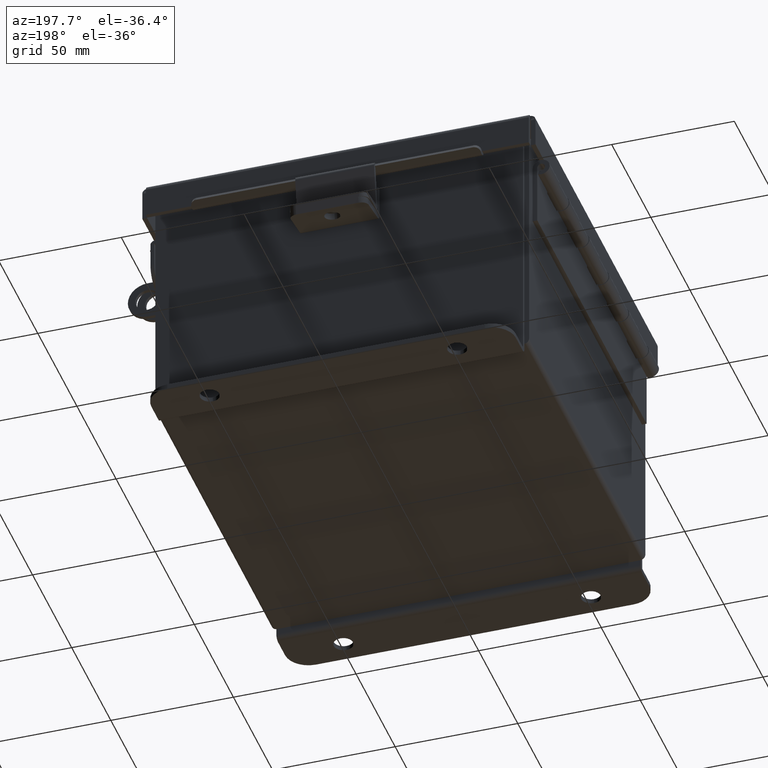
[diagram: clean part render]
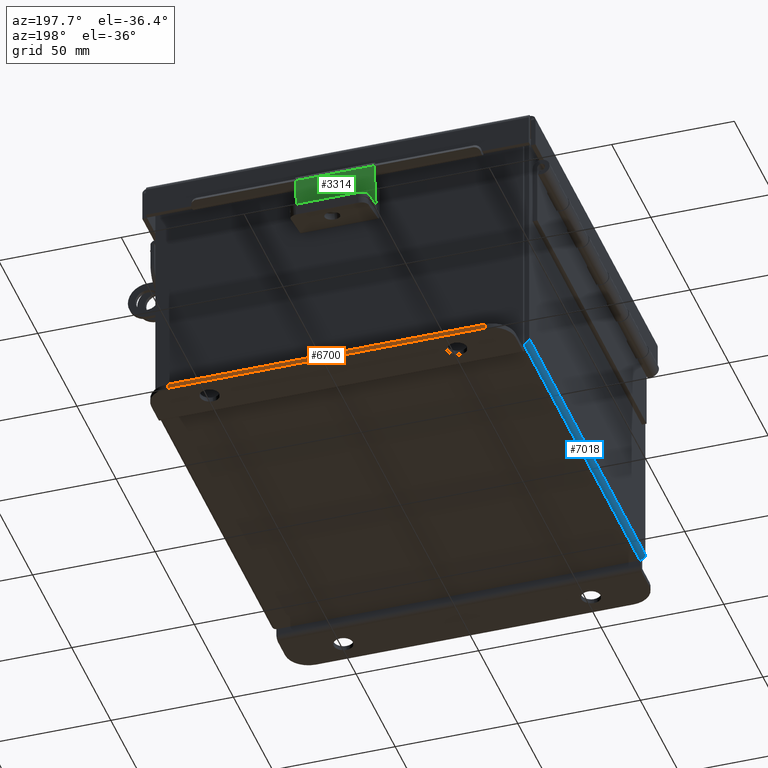
[diagram: same view with three faces highlighted in distinct colors, each labeled with its STEP entity id]
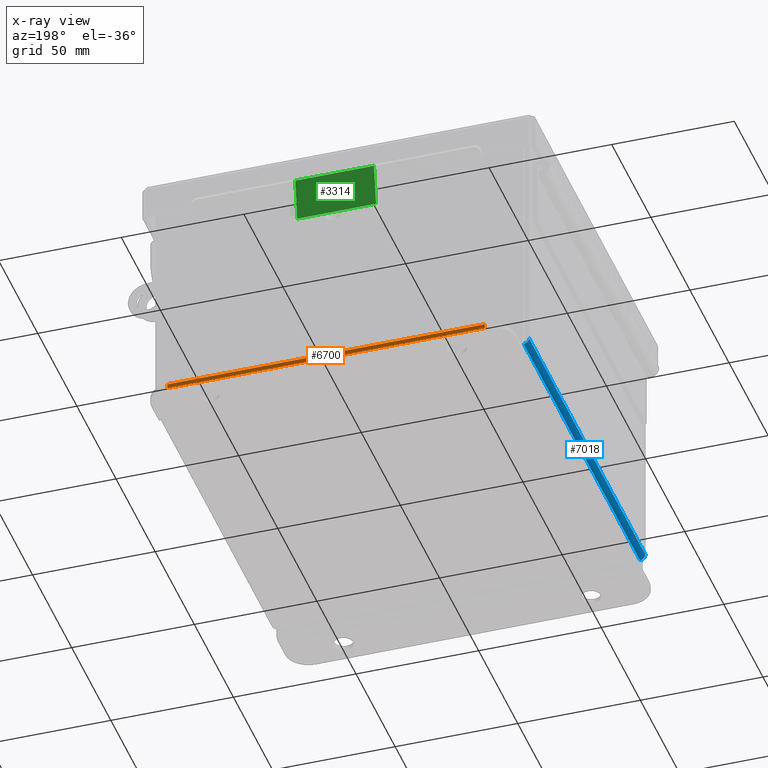
[diagram: x-ray of the same camera — body ghosted, the three highlighted faces saturated]
A machine part, auxiliary view with three faces highlighted in distinct colors.
The next image is the same camera in x-ray (body ghosted, the three faces saturated) — at least one of them is partly hidden behind the body in this view.
Their STEP definitions:

[orange] entity #6700 — the highlighted planar face has unit normal (0, -1, 0).
#57 = DIRECTION ( 'NONE',  ( 0.0000000000000000000, -1.000000000000000000, 3.491481338843133700E-015 ) ) ;
#151 = CARTESIAN_POINT ( 'NONE',  ( 2.550299999999999100, 0.7378000000000000100, -2.112300000000001600 ) ) ;
#186 = VERTEX_POINT ( 'NONE', #13097 ) ;
#301 = EDGE_CURVE ( 'NONE', #1570, #2209, #4873, .T. ) ;
#490 = VERTEX_POINT ( 'NONE', #9980 ) ;
#1355 = EDGE_CURVE ( 'NONE', #186, #490, #4846, .T. ) ;
#1570 = VERTEX_POINT ( 'NONE', #10297 ) ;
#1906 = LINE ( 'NONE', #7580, #10685 ) ;
#1921 = VECTOR ( 'NONE', #11776, 39.37007874015748100 ) ;
#2209 = VERTEX_POINT ( 'NONE', #151 ) ;
#2738 = ORIENTED_EDGE ( 'NONE', *, *, #8226, .T. ) ;
#3466 = ORIENTED_EDGE ( 'NONE', *, *, #1355, .F. ) ;
#4384 = PLANE ( 'NONE',  #14009 ) ;
#4846 = LINE ( 'NONE', #7072, #1921 ) ;
#4870 = FACE_OUTER_BOUND ( 'NONE', #10190, .T. ) ;
#4873 = LINE ( 'NONE', #5789, #7798 ) ;
#5789 = CARTESIAN_POINT ( 'NONE',  ( 2.925299999999999100, 0.7378000000000000100, -2.112300000000001600 ) ) ;
#6613 = CARTESIAN_POINT ( 'NONE',  ( 2.925299999999999100, 0.7378000000000000100, -2.187000000000001600 ) ) ;
#6700 = ADVANCED_FACE ( 'NONE', ( #4870 ), #4384, .F. ) ;
#6899 = DIRECTION ( 'NONE',  ( 1.000000000000000000, -0.0000000000000000000, -0.0000000000000000000 ) ) ;
#7072 = CARTESIAN_POINT ( 'NONE',  ( 0.0000000000000000000, 0.7378000000000000100, -2.187000000000001600 ) ) ;
#7336 = CARTESIAN_POINT ( 'NONE',  ( 2.550299999999999100, 0.7378000000000000100, -2.187000000000001600 ) ) ;
#7580 = CARTESIAN_POINT ( 'NONE',  ( -2.550300000000000900, 0.7378000000000000100, -2.187000000000001600 ) ) ;
#7714 = DIRECTION ( 'NONE',  ( 0.0000000000000000000, -3.491481338843133700E-015, -1.000000000000000000 ) ) ;
#7798 = VECTOR ( 'NONE', #6899, 39.37007874015748100 ) ;
#8226 = EDGE_CURVE ( 'NONE', #186, #1570, #1906, .T. ) ;
#8455 = DIRECTION ( 'NONE',  ( -0.0000000000000000000, -3.491481338843133700E-015, -1.000000000000000000 ) ) ;
#9898 = EDGE_CURVE ( 'NONE', #2209, #490, #10491, .T. ) ;
#9925 = ORIENTED_EDGE ( 'NONE', *, *, #301, .T. ) ;
#9980 = CARTESIAN_POINT ( 'NONE',  ( 2.550299999999999100, 0.7378000000000000100, -2.187000000000001600 ) ) ;
#10157 = VECTOR ( 'NONE', #8455, 39.37007874015748100 ) ;
#10190 = EDGE_LOOP ( 'NONE', ( #9925, #10850, #3466, #2738 ) ) ;
#10297 = CARTESIAN_POINT ( 'NONE',  ( -2.550300000000000900, 0.7378000000000000100, -2.112300000000001600 ) ) ;
#10491 = LINE ( 'NONE', #7336, #10157 ) ;
#10685 = VECTOR ( 'NONE', #14162, 39.37007874015748100 ) ;
#10850 = ORIENTED_EDGE ( 'NONE', *, *, #9898, .T. ) ;
#11776 = DIRECTION ( 'NONE',  ( 1.000000000000000000, 0.0000000000000000000, -0.0000000000000000000 ) ) ;
#13097 = CARTESIAN_POINT ( 'NONE',  ( -2.550300000000000900, 0.7378000000000000100, -2.187000000000001600 ) ) ;
#14009 = AXIS2_PLACEMENT_3D ( 'NONE', #6613, #57, #7714 ) ;
#14162 = DIRECTION ( 'NONE',  ( -0.0000000000000000000, 3.491481338843133700E-015, 1.000000000000000000 ) ) ;

[blue] entity #7018 — the highlighted cylindrical surface (edge-blend (fillet) strip) has radius 2.2276 mm, axis along (0, -1, 0).
#47 = CIRCLE ( 'NONE', #1556, 0.08770000000000009700 ) ;
#755 = DIRECTION ( 'NONE',  ( -0.0000000000000000000, 1.000000000000000000, -8.208677865577646300E-017 ) ) ;
#987 = CARTESIAN_POINT ( 'NONE',  ( -2.999999999999999100, 2.925300000000000500, 0.01299999999999987600 ) ) ;
#1448 = ORIENTED_EDGE ( 'NONE', *, *, #8668, .F. ) ;
#1547 = CARTESIAN_POINT ( 'NONE',  ( -2.912299999999998800, -2.925299999999999100, 0.01300000000000066200 ) ) ;
#1556 = AXIS2_PLACEMENT_3D ( 'NONE', #10993, #4388, #12099 ) ;
#1725 = LINE ( 'NONE', #2967, #7227 ) ;
#1950 = CARTESIAN_POINT ( 'NONE',  ( -2.912299999999998800, -2.925299999999999100, -0.07469999999999943400 ) ) ;
#2189 = ORIENTED_EDGE ( 'NONE', *, *, #10518, .F. ) ;
#2396 = EDGE_CURVE ( 'NONE', #3569, #6614, #5355, .T. ) ;
#2650 = DIRECTION ( 'NONE',  ( 0.0000000000000000000, 0.0000000000000000000, -1.000000000000000000 ) ) ;
#2967 = CARTESIAN_POINT ( 'NONE',  ( -2.912299999999998800, -2.925299999999999600, -0.07469999999999943400 ) ) ;
#3569 = VERTEX_POINT ( 'NONE', #4741 ) ;
#3721 = DIRECTION ( 'NONE',  ( 0.0000000000000000000, -1.000000000000000000, 8.208677865577646300E-017 ) ) ;
#3799 = VERTEX_POINT ( 'NONE', #11207 ) ;
#4333 = FACE_OUTER_BOUND ( 'NONE', #7242, .T. ) ;
#4388 = DIRECTION ( 'NONE',  ( -0.0000000000000000000, 1.000000000000000000, -8.208677865577646300E-017 ) ) ;
#4559 = ORIENTED_EDGE ( 'NONE', *, *, #2396, .T. ) ;
#4741 = CARTESIAN_POINT ( 'NONE',  ( -2.999999999999999100, -2.925299999999999100, 0.01300000000000039000 ) ) ;
#4785 = ORIENTED_EDGE ( 'NONE', *, *, #10244, .F. ) ;
#4800 = CIRCLE ( 'NONE', #13867, 0.08770000000000009700 ) ;
#4834 = CARTESIAN_POINT ( 'NONE',  ( -2.912299999999998800, -2.925299999999999600, 0.01300000000000066200 ) ) ;
#5355 = LINE ( 'NONE', #10918, #5715 ) ;
#5715 = VECTOR ( 'NONE', #13133, 39.37007874015748100 ) ;
#6614 = VERTEX_POINT ( 'NONE', #987 ) ;
#6930 = CYLINDRICAL_SURFACE ( 'NONE', #13740, 0.08770000000000026400 ) ;
#7018 = ADVANCED_FACE ( 'NONE', ( #4333 ), #6930, .T. ) ;
#7227 = VECTOR ( 'NONE', #755, 39.37007874015748100 ) ;
#7242 = EDGE_LOOP ( 'NONE', ( #1448, #4785, #4559, #2189 ) ) ;
#8668 = EDGE_CURVE ( 'NONE', #11018, #3799, #1725, .T. ) ;
#9232 = DIRECTION ( 'NONE',  ( 0.0000000000000000000, -1.000000000000000000, 8.208677865577646300E-017 ) ) ;
#10244 = EDGE_CURVE ( 'NONE', #3569, #11018, #4800, .T. ) ;
#10327 = DIRECTION ( 'NONE',  ( -1.000000000000000000, 0.0000000000000000000, -3.553037762569317100E-015 ) ) ;
#10518 = EDGE_CURVE ( 'NONE', #3799, #6614, #47, .T. ) ;
#10918 = CARTESIAN_POINT ( 'NONE',  ( -2.999999999999999100, 2.925300000000000500, 0.01299999999999984300 ) ) ;
#10993 = CARTESIAN_POINT ( 'NONE',  ( -2.912299999999998800, 2.925300000000000500, 0.01300000000000018300 ) ) ;
#11018 = VERTEX_POINT ( 'NONE', #1950 ) ;
#11207 = CARTESIAN_POINT ( 'NONE',  ( -2.912299999999998800, 2.925300000000000500, -0.07470000000000000300 ) ) ;
#12099 = DIRECTION ( 'NONE',  ( 0.0000000000000000000, 0.0000000000000000000, -1.000000000000000000 ) ) ;
#13133 = DIRECTION ( 'NONE',  ( 3.312716323822492500E-031, 1.000000000000000000, -9.338693445678268600E-017 ) ) ;
#13740 = AXIS2_PLACEMENT_3D ( 'NONE', #4834, #3721, #10327 ) ;
#13867 = AXIS2_PLACEMENT_3D ( 'NONE', #1547, #9232, #2650 ) ;

[green] entity #3314 — the highlighted planar face has unit normal (-0, -0.9877, 0.1564).
#228 = DIRECTION ( 'NONE',  ( 0.0000000000000000000, 1.000000000000000000, 0.0000000000000000000 ) ) ;
#248 = PLANE ( 'NONE',  #3504 ) ;
#415 = ORIENTED_EDGE ( 'NONE', *, *, #3273, .T. ) ;
#1140 = VECTOR ( 'NONE', #228, 39.37007874015748100 ) ;
#1300 = EDGE_LOOP ( 'NONE', ( #13555, #415, #10170, #10402 ) ) ;
#1320 = LINE ( 'NONE', #3905, #9731 ) ;
#1834 = CARTESIAN_POINT ( 'NONE',  ( 0.6324999999999998400, 0.3243453803252444000, -1.024442997624098700E-016 ) ) ;
#2327 = VERTEX_POINT ( 'NONE', #13340 ) ;
#3011 = CARTESIAN_POINT ( 'NONE',  ( 0.6325000000000000600, 0.3243453803252444000, -1.024442997624098700E-016 ) ) ;
#3153 = DIRECTION ( 'NONE',  ( -0.0000000000000000000, -1.000000000000000000, -0.0000000000000000000 ) ) ;
#3273 = EDGE_CURVE ( 'NONE', #2327, #9754, #1320, .T. ) ;
#3314 = ADVANCED_FACE ( 'NONE', ( #4212 ), #248, .F. ) ;
#3504 = AXIS2_PLACEMENT_3D ( 'NONE', #8013, #5896, #14090 ) ;
#3905 = CARTESIAN_POINT ( 'NONE',  ( -0.6325000000000000600, -0.4174999999999998700, 0.0000000000000000000 ) ) ;
#4047 = LINE ( 'NONE', #7838, #1140 ) ;
#4212 = FACE_OUTER_BOUND ( 'NONE', #1300, .T. ) ;
#5180 = LINE ( 'NONE', #13888, #13622 ) ;
#5896 = DIRECTION ( 'NONE',  ( 0.0000000000000000000, 0.0000000000000000000, -1.000000000000000000 ) ) ;
#7165 = VERTEX_POINT ( 'NONE', #8526 ) ;
#7749 = EDGE_CURVE ( 'NONE', #7165, #9754, #5180, .T. ) ;
#7838 = CARTESIAN_POINT ( 'NONE',  ( 0.6325000000000000600, -0.4174999999999998700, 0.0000000000000000000 ) ) ;
#8013 = CARTESIAN_POINT ( 'NONE',  ( 0.6325000000000000600, 0.4175000000000001500, 0.0000000000000000000 ) ) ;
#8526 = CARTESIAN_POINT ( 'NONE',  ( 0.6325000000000000600, -0.3344999999999998500, -3.734948428837859800E-017 ) ) ;
#8699 = EDGE_CURVE ( 'NONE', #13474, #2327, #9128, .T. ) ;
#9128 = LINE ( 'NONE', #3011, #11699 ) ;
#9488 = DIRECTION ( 'NONE',  ( -1.000000000000000000, 0.0000000000000000000, 0.0000000000000000000 ) ) ;
#9731 = VECTOR ( 'NONE', #3153, 39.37007874015748100 ) ;
#9754 = VERTEX_POINT ( 'NONE', #11535 ) ;
#10170 = ORIENTED_EDGE ( 'NONE', *, *, #7749, .F. ) ;
#10402 = ORIENTED_EDGE ( 'NONE', *, *, #13801, .T. ) ;
#10698 = DIRECTION ( 'NONE',  ( -1.000000000000000000, -0.0000000000000000000, -0.0000000000000000000 ) ) ;
#11535 = CARTESIAN_POINT ( 'NONE',  ( -0.6325000000000000600, -0.3344999999999998500, -3.734948428837859800E-017 ) ) ;
#11699 = VECTOR ( 'NONE', #10698, 39.37007874015748100 ) ;
#13340 = CARTESIAN_POINT ( 'NONE',  ( -0.6325000000000000600, 0.3243453803252444000, 0.0000000000000000000 ) ) ;
#13474 = VERTEX_POINT ( 'NONE', #1834 ) ;
#13555 = ORIENTED_EDGE ( 'NONE', *, *, #8699, .T. ) ;
#13622 = VECTOR ( 'NONE', #9488, 39.37007874015748100 ) ;
#13801 = EDGE_CURVE ( 'NONE', #7165, #13474, #4047, .T. ) ;
#13888 = CARTESIAN_POINT ( 'NONE',  ( 0.6325000000000000600, -0.3344999999999998500, -3.734948428837859800E-017 ) ) ;
#14090 = DIRECTION ( 'NONE',  ( -1.000000000000000000, 0.0000000000000000000, -0.0000000000000000000 ) ) ;